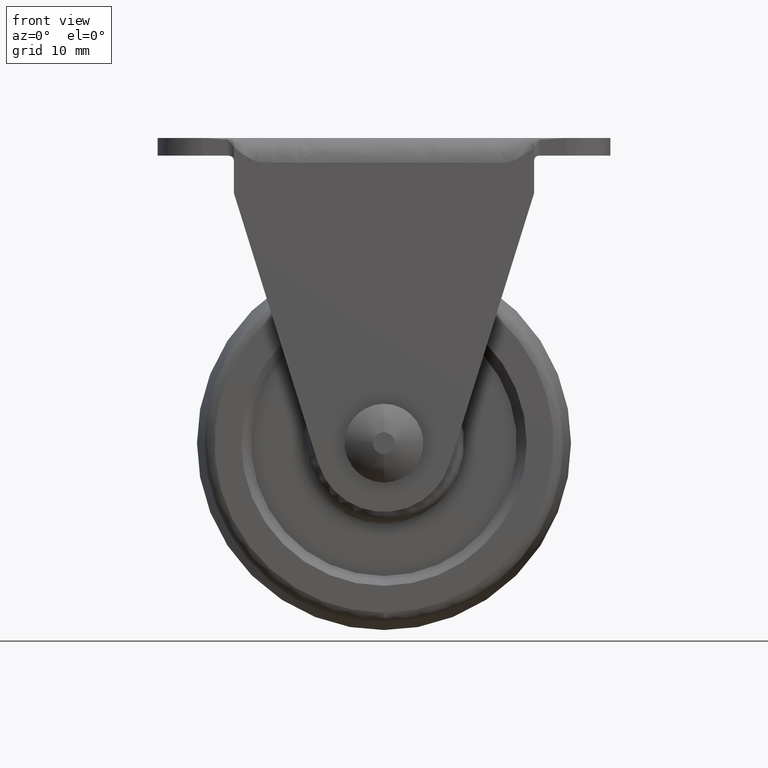
[diagram: clean part render]
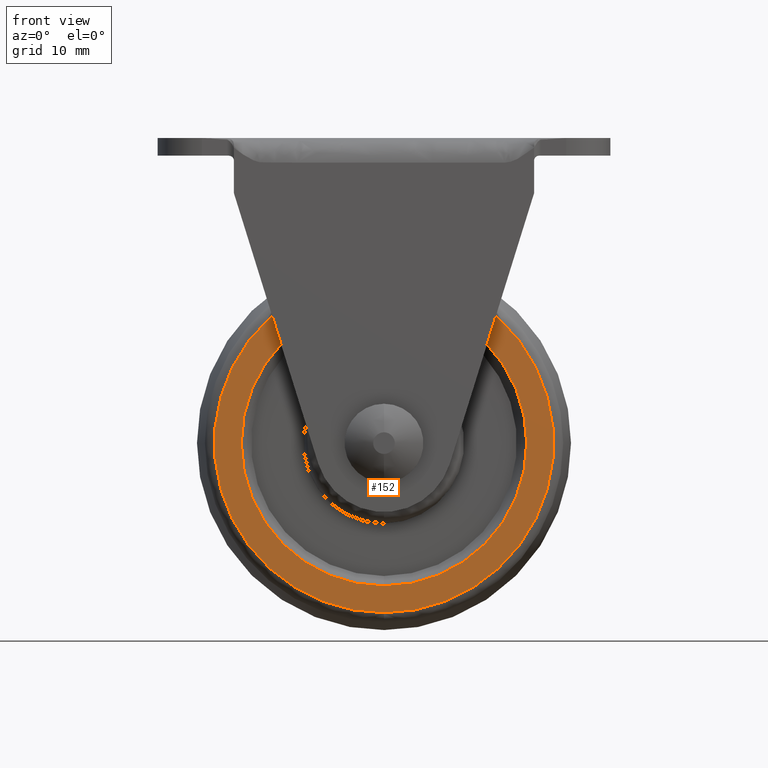
[diagram: same view with one face highlighted and labeled with its STEP entity id]
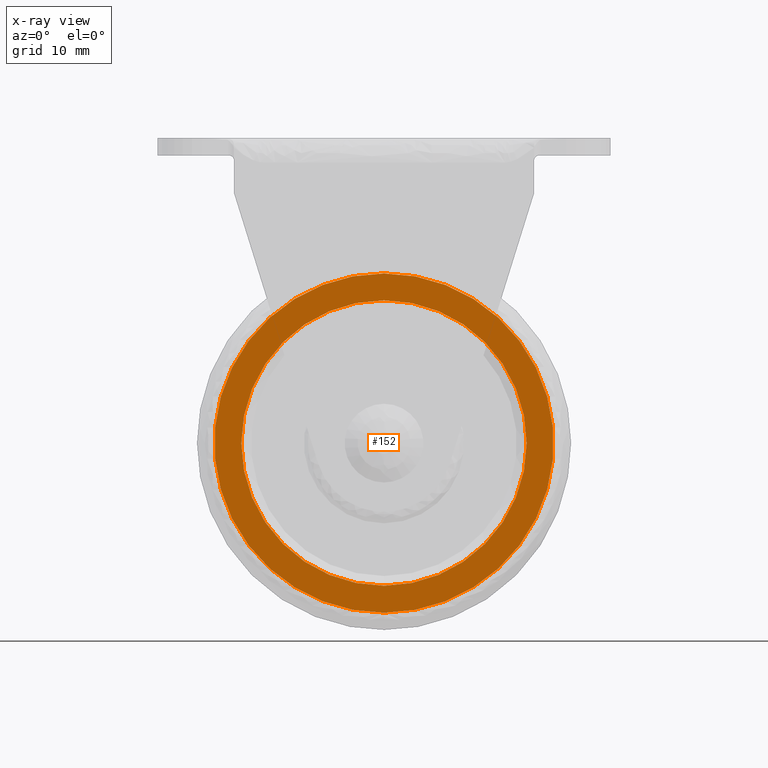
[diagram: x-ray of the same camera — body ghosted, the highlighted face saturated]
A machine part, front view. The second image highlights one B-rep face of the part: STEP entity #152.
The next image is the same camera in x-ray: the body ghosted, the highlighted face saturated — about 0% of this face is hidden behind the body in this view.
In plain terms, the highlighted planar face has unit normal (0, -1, 0).
Its self-contained STEP definition (entity closure, byte-faithful):
#152=ADVANCED_FACE('',(#296,#297),#295,.T.);
#295=PLANE('',#1434);
#296=FACE_OUTER_BOUND('',#1435,.T.);
#297=FACE_BOUND('',#1436,.T.);
#1431=CARTESIAN_POINT('',(-3.58158149454E+01,-8.50000000000E+00,3.96333516000E+01));
#1432=DIRECTION('',(0.00000000000E+00,-1.00000000000E+00,0.00000000000E+00));
#1433=DIRECTION('',(0.00000000000E+00,0.00000000000E+00,-1.00000000000E+00));
#1434=AXIS2_PLACEMENT_3D('',#1431,#1432,#1433);
#1435=EDGE_LOOP('',(#2919,#2920));
#1436=EDGE_LOOP('',(#2921,#2922));
#2919=ORIENTED_EDGE('',*,*,#3443,.T.);
#2920=ORIENTED_EDGE('',*,*,#3444,.T.);
#2921=ORIENTED_EDGE('',*,*,#3445,.F.);
#2922=ORIENTED_EDGE('',*,*,#3446,.F.);
#3443=EDGE_CURVE('',#3777,#3778,#3779,.T.);
#3444=EDGE_CURVE('',#3778,#3777,#3785,.T.);
#3445=EDGE_CURVE('',#3791,#3792,#3793,.T.);
#3446=EDGE_CURVE('',#3792,#3791,#3799,.T.);
#3777=VERTEX_POINT('',#5487);
#3778=VERTEX_POINT('',#5488);
#3779=CIRCLE('',#5492,1.72318920000E+01);
#3785=CIRCLE('',#5496,1.72318920000E+01);
#3791=VERTEX_POINT('',#5497);
#3792=VERTEX_POINT('',#5498);
#3793=CIRCLE('',#5502,1.45000000000E+01);
#3799=CIRCLE('',#5506,1.45000000000E+01);
#5487=CARTESIAN_POINT('',(0.00000000000E+00,-8.50000000000E+00,-1.72318920000E+01));
#5488=CARTESIAN_POINT('',(1.18423789293E-15,-8.50000000000E+00,1.72318920000E+01));
#5489=CARTESIAN_POINT('',(0.00000000000E+00,-8.50000000000E+00,9.88461408184E-16));
#5490=DIRECTION('',(0.00000000000E+00,-1.00000000000E+00,-0.00000000000E+00));
#5491=DIRECTION('',(-1.22460635382E-16,0.00000000000E+00,-1.00000000000E+00));
#5492=AXIS2_PLACEMENT_3D('',#5489,#5490,#5491);
#5493=CARTESIAN_POINT('',(0.00000000000E+00,-8.50000000000E+00,9.88461408184E-16));
#5494=DIRECTION('',(0.00000000000E+00,-1.00000000000E+00,-0.00000000000E+00));
#5495=DIRECTION('',(-1.22460635382E-16,0.00000000000E+00,-1.00000000000E+00));
#5496=AXIS2_PLACEMENT_3D('',#5493,#5494,#5495);
#5497=CARTESIAN_POINT('',(5.92118946467E-16,-8.50000000000E+00,1.45000000000E+01));
#5498=CARTESIAN_POINT('',(0.00000000000E+00,-8.50000000000E+00,-1.45000000000E+01));
#5499=CARTESIAN_POINT('',(0.00000000000E+00,-8.50000000000E+00,9.88461408184E-16));
#5500=DIRECTION('',(0.00000000000E+00,-1.00000000000E+00,-0.00000000000E+00));
#5501=DIRECTION('',(-1.22460635382E-16,0.00000000000E+00,-1.00000000000E+00));
#5502=AXIS2_PLACEMENT_3D('',#5499,#5500,#5501);
#5503=CARTESIAN_POINT('',(0.00000000000E+00,-8.50000000000E+00,9.88461408184E-16));
#5504=DIRECTION('',(0.00000000000E+00,-1.00000000000E+00,-0.00000000000E+00));
#5505=DIRECTION('',(-1.22460635382E-16,0.00000000000E+00,-1.00000000000E+00));
#5506=AXIS2_PLACEMENT_3D('',#5503,#5504,#5505);